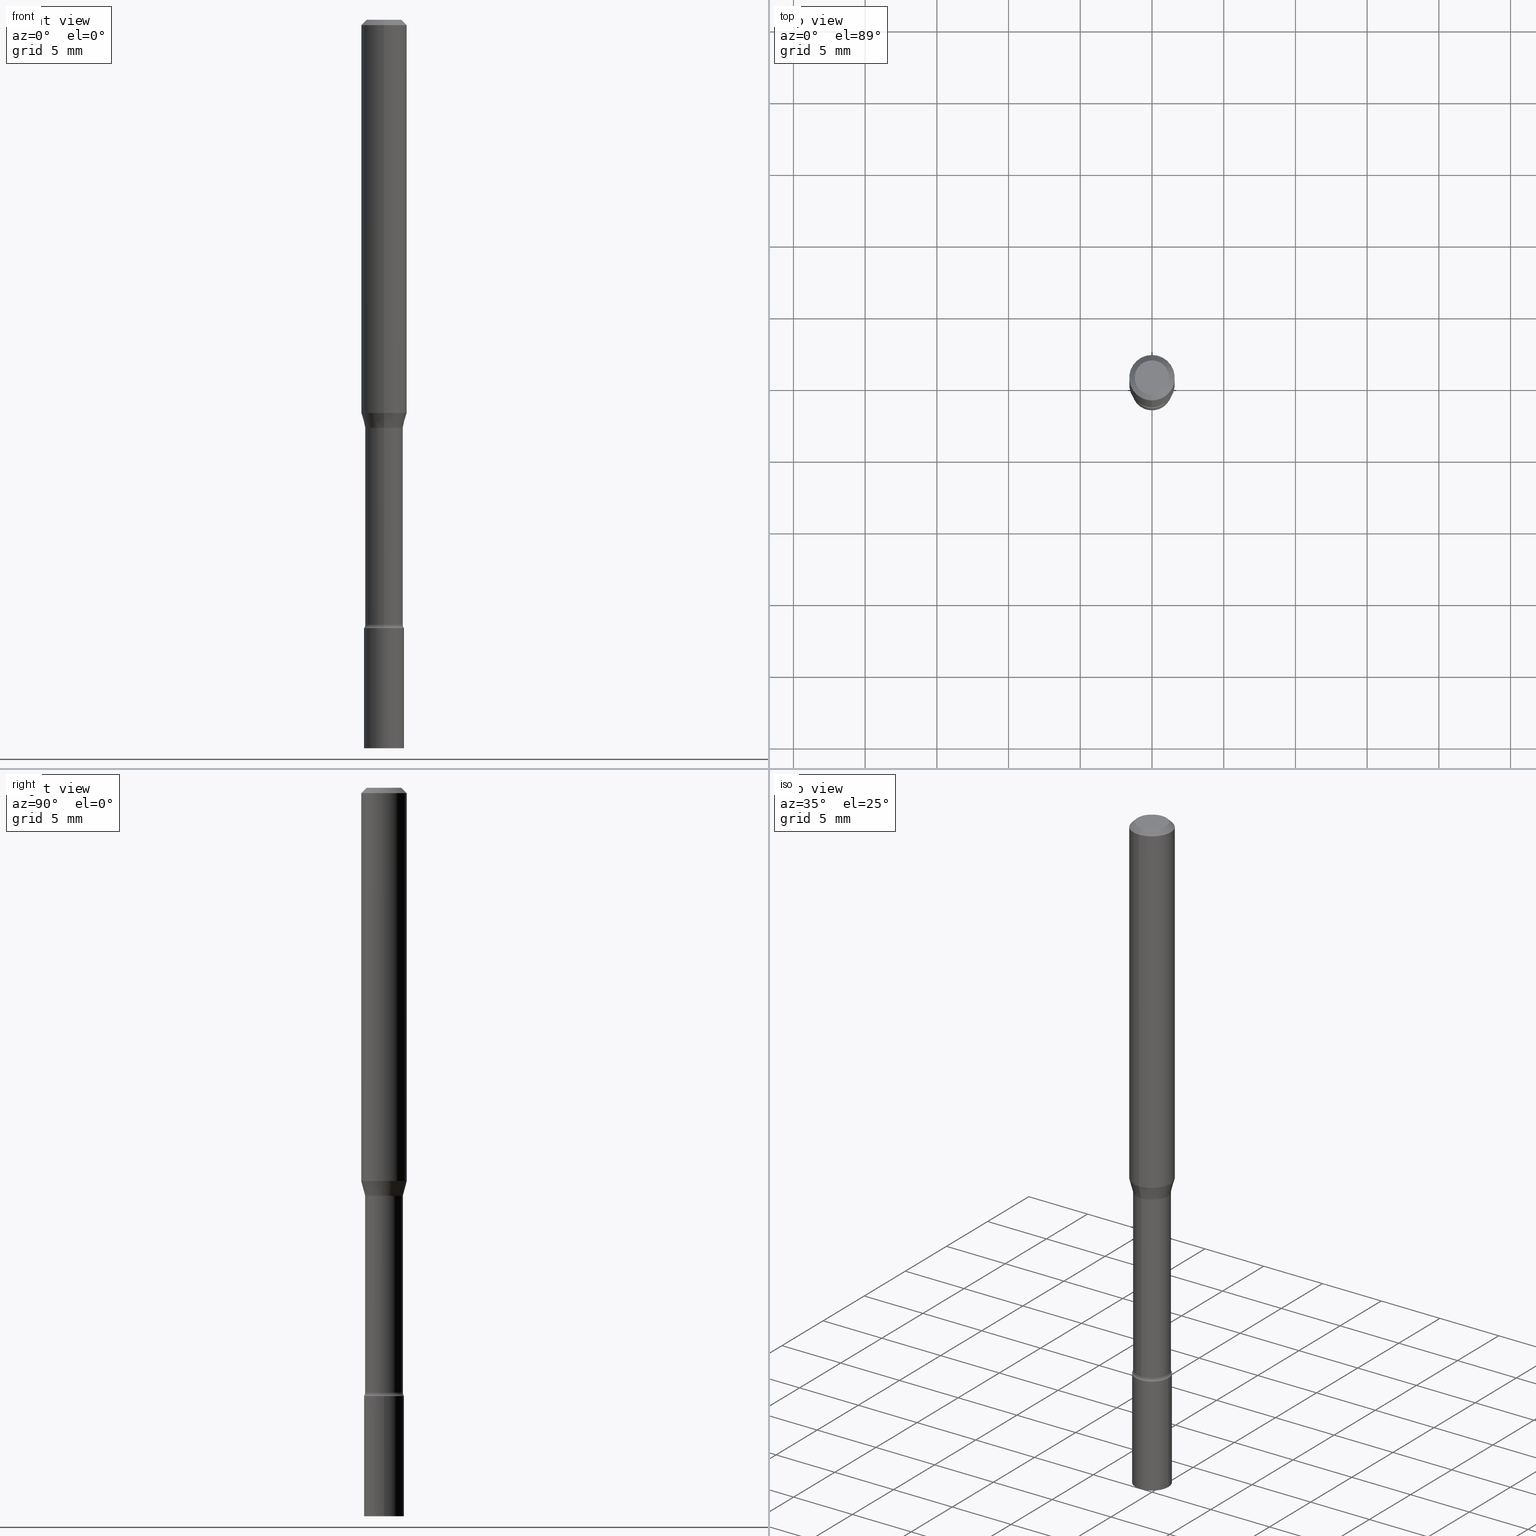
[diagram: canonical four-view strip — front | top / right | iso, engineering-drawing reading convention]
A machine part, canonical four-view strip (front | top / right | iso — engineering-drawing reading convention). The complete STEP part file that produces these views, byte-faithful:
ISO-10303-21;
HEADER;
FILE_DESCRIPTION (( 'STEP AP203' ),
    '1' );
FILE_NAME ('03478.STEP',
    '2024-03-08T21:29:04',
    ( '' ),
    ( '' ),
    'SwSTEP 2.0',
    'SolidWorks 2023',
    '' );
FILE_SCHEMA (( 'CONFIG_CONTROL_DESIGN' ));
ENDSEC;

DATA;
#1 = ORIENTED_EDGE ( 'NONE', *, *, #211, .T. ) ;
#2 = PERSON_AND_ORGANIZATION ( #9, #476 ) ;
#3 = DIRECTION ( 'NONE',  ( -6.982962677686265922E-15, -1.000000000000000000, 2.616155696869698441E-15 ) ) ;
#4 = TOROIDAL_SURFACE ( 'NONE', #429, 0.06670000000000006479, 0.01500000000000006710 ) ;
#5 = DIRECTION ( 'NONE',  ( -2.445425162328998423E-29, 3.491543839329189399E-15, 1.000000000000000000 ) ) ;
#6 = ORIENTED_EDGE ( 'NONE', *, *, #30, .T. ) ;
#7 = CIRCLE ( 'NONE', #132, 0.05170000000000000984 ) ;
#8 = EDGE_CURVE ( 'NONE', #367, #158, #295, .T. ) ;
#9 = PERSON ( 'UNSPECIFIED', 'UNSPECIFIED', 'UNSPECIFIED', ('UNSPECIFIED'), ('UNSPECIFIED'), ('UNSPECIFIED') ) ;
#10 = LINE ( 'NONE', #485, #114 ) ;
#11 = ADVANCED_FACE ( 'NONE', ( #472 ), #403, .T. ) ;
#12 = CARTESIAN_POINT ( 'NONE',  ( -4.364351673553912750E-16, -0.06250000000000005551, -0.01499999999999981209 ) ) ;
#13 = DIRECTION ( 'NONE',  ( 6.982962677686265922E-15, 1.000000000000000000, -3.491543839329189794E-15 ) ) ;
#14 = CARTESIAN_POINT ( 'NONE',  ( -4.657636106016338808E-16, -0.06670000000000586571, -1.660613307291702423 ) ) ;
#15 = LOCAL_TIME ( 16, 29, 4.000000000000000000, #90 ) ;
#16 = CARTESIAN_POINT ( 'NONE',  ( 3.840629472727855124E-16, 0.05499999999999417161, -1.670000000000000151 ) ) ;
#17 = FACE_OUTER_BOUND ( 'NONE', #49, .T. ) ;
#18 = AXIS2_PLACEMENT_3D ( 'NONE', #150, #276, #13 ) ;
#19 =( NAMED_UNIT ( * ) SI_UNIT ( $, .STERADIAN. ) SOLID_ANGLE_UNIT ( ) );
#20 = CARTESIAN_POINT ( 'NONE',  ( 3.668137743493505096E-31, -5.237315758993794502E-17, -0.01500000000000003067 ) ) ;
#21 = DIRECTION ( 'NONE',  ( -6.982962677686265133E-15, -1.000000000000000000, 3.491543839329189005E-15 ) ) ;
#22 = VECTOR ( 'NONE', #285, 39.37007874015748143 ) ;
#23 = CARTESIAN_POINT ( 'NONE',  ( 4.083932906329177803E-29, -5.830773835868053056E-15, -1.669999999999999929 ) ) ;
#24 = DIRECTION ( 'NONE',  ( 1.000000000000000000, -7.105427357601001070E-15, 4.926316273952284345E-29 ) ) ;
#25 =( NAMED_UNIT ( * ) PLANE_ANGLE_UNIT ( ) SI_UNIT ( $, .RADIAN. ) );
#26 = CARTESIAN_POINT ( 'NONE',  ( 2.743754344068947711E-29, -3.917354033082399546E-15, -1.121974787463810852 ) ) ;
#27 = DIRECTION ( 'NONE',  ( -6.982962677686265922E-15, -1.000000000000000000, 3.483106191921935554E-15 ) ) ;
#28 = ORIENTED_EDGE ( 'NONE', *, *, #455, .T. ) ;
#29 = DIRECTION ( 'NONE',  ( 2.445425162328998423E-29, -3.491543839329189399E-15, -1.000000000000000000 ) ) ;
#30 = EDGE_CURVE ( 'NONE', #473, #125, #7, .T. ) ;
#31 = EDGE_CURVE ( 'NONE', #158, #466, #162, .T. ) ;
#32 = ORIENTED_EDGE ( 'NONE', *, *, #505, .T. ) ;
#33 = CARTESIAN_POINT ( 'NONE',  ( 0.000000000000000000, 0.000000000000000000, 0.000000000000000000 ) ) ;
#34 = ORIENTED_EDGE ( 'NONE', *, *, #232, .T. ) ;
#35 = APPROVAL_ROLE ( '' ) ;
#36 = AXIS2_PLACEMENT_3D ( 'NONE', #151, #311, #155 ) ;
#37 = DIRECTION ( 'NONE',  ( -2.445425162328998423E-29, 3.491543839329189399E-15, 1.000000000000000000 ) ) ;
#38 = COORDINATED_UNIVERSAL_TIME_OFFSET ( 5, 0, .BEHIND. ) ;
#39 = ADVANCED_FACE ( 'NONE', ( #440 ), #502, .F. ) ;
#40 = AXIS2_PLACEMENT_3D ( 'NONE', #57, #352, #459 ) ;
#41 = ORIENTED_EDGE ( 'NONE', *, *, #455, .F. ) ;
#42 = ORIENTED_EDGE ( 'NONE', *, *, #50, .F. ) ;
#43 = DIRECTION ( 'NONE',  ( 7.105427357600997914E-15, 1.000000000000000000, 0.000000000000000000 ) ) ;
#44 = CALENDAR_DATE ( 2024, 8, 3 ) ;
#45 = AXIS2_PLACEMENT_3D ( 'NONE', #58, #395, #233 ) ;
#46 = CARTESIAN_POINT ( 'NONE',  ( 4.060978042117791300E-29, -5.798000373443578100E-15, -1.660613307291702645 ) ) ;
#47 = CARTESIAN_POINT ( 'NONE',  ( 2.734211537681978433E-29, -3.903868986415513327E-15, -1.118092501787272930 ) ) ;
#48 = AXIS2_PLACEMENT_3D ( 'NONE', #193, #24, #492 ) ;
#49 = EDGE_LOOP ( 'NONE', ( #1, #28 ) ) ;
#50 = EDGE_CURVE ( 'NONE', #363, #401, #450, .T. ) ;
#51 = AXIS2_PLACEMENT_3D ( 'NONE', #47, #338, #3 ) ;
#52 = CARTESIAN_POINT ( 'NONE',  ( 0.05500000000000000028, -6.214836783140797252E-15, -1.669999999999999929 ) ) ;
#53 = LOCAL_TIME ( 16, 29, 4.000000000000000000, #509 ) ;
#54 = DIRECTION ( 'NONE',  ( -2.445468806185136597E-29, 3.491481338843145583E-15, 1.000000000000000000 ) ) ;
#55 = DIRECTION ( 'NONE',  ( -1.000000000000000000, 6.982962677686265922E-15, -4.883557194083112340E-29 ) ) ;
#56 = DIRECTION ( 'NONE',  ( 1.000000000000000000, -6.982962677686262766E-15, 0.000000000000000000 ) ) ;
#57 = CARTESIAN_POINT ( 'NONE',  ( 2.734211537681978433E-29, -3.903868986415513327E-15, -1.118092501787272930 ) ) ;
#58 = CARTESIAN_POINT ( 'NONE',  ( 0.000000000000000000, 0.000000000000000000, 0.000000000000000000 ) ) ;
#59 = DIRECTION ( 'NONE',  ( 1.000000000000000000, -6.982962677686262766E-15, 0.000000000000000000 ) ) ;
#60 = DIRECTION ( 'NONE',  ( -6.982962677686266711E-15, -1.000000000000000000, 4.966996352116842287E-15 ) ) ;
#61 = LOCAL_TIME ( 16, 29, 4.000000000000000000, #334 ) ;
#62 = PLANE ( 'NONE',  #18 ) ;
#63 = CC_DESIGN_PERSON_AND_ORGANIZATION_ASSIGNMENT ( #323, #405, ( #319 ) ) ;
#64 = CARTESIAN_POINT ( 'NONE',  ( 0.05500000000000000028, -3.840629472727446888E-16, 2.681897226687764826E-30 ) ) ;
#65 = PLANE ( 'NONE',  #273 ) ;
#66 = DIRECTION ( 'NONE',  ( -2.445425162328998423E-29, 3.491543839329189399E-15, 1.000000000000000000 ) ) ;
#67 = ORIENTED_EDGE ( 'NONE', *, *, #152, .F. ) ;
#68 = DIRECTION ( 'NONE',  ( -2.445425162328998423E-29, 3.491543839329189399E-15, 1.000000000000000000 ) ) ;
#69 = AXIS2_PLACEMENT_3D ( 'NONE', #14, #299, #98 ) ;
#70 = CARTESIAN_POINT ( 'NONE',  ( -3.610191704363799542E-16, -0.05170000000000000984, 1.805128164933191265E-16 ) ) ;
#71 = DIRECTION ( 'NONE',  ( -1.000000000000000000, 6.982962677686265922E-15, -4.876176775795935793E-29 ) ) ;
#72 = EDGE_CURVE ( 'NONE', #112, #89, #438, .T. ) ;
#73 = EDGE_LOOP ( 'NONE', ( #298, #288, #156, #261 ) ) ;
#74 = CC_DESIGN_PERSON_AND_ORGANIZATION_ASSIGNMENT ( #437, #256, ( #319 ) ) ;
#75 = CARTESIAN_POINT ( 'NONE',  ( 7.069954541194189329E-46, -1.009438219697314145E-31, -2.891094215478193319E-17 ) ) ;
#76 = DIRECTION ( 'NONE',  ( -2.445468806185136597E-29, 3.491481338843145583E-15, 1.000000000000000000 ) ) ;
#77 = ORIENTED_EDGE ( 'NONE', *, *, #147, .F. ) ;
#78 = CIRCLE ( 'NONE', #307, 0.06250000000000000000 ) ;
#79 = PERSON_AND_ORGANIZATION_ROLE ( 'classification_officer' ) ;
#80 = ORIENTED_EDGE ( 'NONE', *, *, #110, .T. ) ;
#81 = SHAPE_DEFINITION_REPRESENTATION ( #365, #184 ) ;
#82 = DIRECTION ( 'NONE',  ( 1.839019923739598738E-15, 0.2588190451025247363, 0.9659258262890673130 ) ) ;
#83 = ADVANCED_FACE ( 'NONE', ( #180 ), #224, .T. ) ;
#84 = ORIENTED_EDGE ( 'NONE', *, *, #317, .T. ) ;
#85 = CARTESIAN_POINT ( 'NONE',  ( 4.083860021089427178E-29, -5.830878211679746103E-15, -1.669999999999999929 ) ) ;
#86 = DIRECTION ( 'NONE',  ( -6.982962677686264344E-15, -1.000000000000000000, 3.491543839329189399E-15 ) ) ;
#87 = DIRECTION ( 'NONE',  ( -2.445425162328998423E-29, 3.491543839329189399E-15, 1.000000000000000000 ) ) ;
#88 = ORIENTED_EDGE ( 'NONE', *, *, #146, .T. ) ;
#89 = VERTEX_POINT ( 'NONE', #493 ) ;
#90 = COORDINATED_UNIVERSAL_TIME_OFFSET ( 5, 0, .BEHIND. ) ;
#91 = AXIS2_PLACEMENT_3D ( 'NONE', #353, #148, #464 ) ;
#92 = DIRECTION ( 'NONE',  ( -6.982962677686264344E-15, -1.000000000000000000, 5.284038672464724914E-15 ) ) ;
#93 = SECURITY_CLASSIFICATION_LEVEL ( 'unclassified' ) ;
#94 = ADVANCED_FACE ( 'NONE', ( #306 ), #360, .F. ) ;
#95 = FACE_OUTER_BOUND ( 'NONE', #447, .T. ) ;
#96 = ADVANCED_FACE ( 'NONE', ( #387 ), #279, .F. ) ;
#97 = AXIS2_PLACEMENT_3D ( 'NONE', #408, #212, #218 ) ;
#98 = DIRECTION ( 'NONE',  ( -6.982962677686263555E-15, -1.000000000000000000, 0.000000000000000000 ) ) ;
#99 = VECTOR ( 'NONE', #343, 39.37007874015748143 ) ;
#100 = CARTESIAN_POINT ( 'NONE',  ( 3.668137743493505096E-31, -5.237315758993794502E-17, -0.01500000000000003067 ) ) ;
#101 = CYLINDRICAL_SURFACE ( 'NONE', #506, 0.05500000000000000028 ) ;
#102 = EDGE_CURVE ( 'NONE', #124, #399, #424, .T. ) ;
#103 = FACE_OUTER_BOUND ( 'NONE', #322, .T. ) ;
#104 = ADVANCED_FACE ( 'NONE', ( #108 ), #197, .T. ) ;
#105 = CIRCLE ( 'NONE', #344, 0.05170000000000000984 ) ;
#106 = DIRECTION ( 'NONE',  ( -6.982962677686265922E-15, -1.000000000000000000, 2.616155696869698441E-15 ) ) ;
#107 = CARTESIAN_POINT ( 'NONE',  ( 4.075357388645938693E-16, 0.05221111260566008161, -1.118092501787273152 ) ) ;
#108 = FACE_OUTER_BOUND ( 'NONE', #217, .T. ) ;
#109 = CYLINDRICAL_SURFACE ( 'NONE', #340, 0.05170000000000000984 ) ;
#110 = EDGE_CURVE ( 'NONE', #111, #253, #314, .T. ) ;
#111 = VERTEX_POINT ( 'NONE', #520 ) ;
#112 = VERTEX_POINT ( 'NONE', #243 ) ;
#113 = PRODUCT_RELATED_PRODUCT_CATEGORY ( 'detail', '', ( #391 ) ) ;
#114 = VECTOR ( 'NONE', #339, 39.37007874015748143 ) ;
#115 = DIRECTION ( 'NONE',  ( -6.982962677686264344E-15, -1.000000000000000000, 2.642019336232362457E-15 ) ) ;
#116 = VERTEX_POINT ( 'NONE', #480 ) ;
#117 = APPROVAL_STATUS ( 'not_yet_approved' ) ;
#118 = CARTESIAN_POINT ( 'NONE',  ( -0.05500000000000000028, 3.907985046680551042E-16, -2.705414299640198362E-30 ) ) ;
#119 = ORIENTED_EDGE ( 'NONE', *, *, #249, .T. ) ;
#120 = PERSON_AND_ORGANIZATION ( #9, #476 ) ;
#121 = DIRECTION ( 'NONE',  ( -1.807323732225328562E-15, -0.2588190451025179639, 0.9659258262890690894 ) ) ;
#122 = LINE ( 'NONE', #444, #183 ) ;
#123 = CARTESIAN_POINT ( 'NONE',  ( 4.060905566549507084E-29, -5.798104162582414395E-15, -1.660613307291702645 ) ) ;
#124 = VERTEX_POINT ( 'NONE', #435 ) ;
#125 = VERTEX_POINT ( 'NONE', #291 ) ;
#126 = ORIENTED_EDGE ( 'NONE', *, *, #317, .F. ) ;
#127 = DATE_AND_TIME ( #326, #221 ) ;
#128 = DIRECTION ( 'NONE',  ( -2.445425162328998423E-29, 3.491543839329189399E-15, 1.000000000000000000 ) ) ;
#129 = CARTESIAN_POINT ( 'NONE',  ( 3.840629472727935489E-16, 0.05499999999999301975, -2.000000000000000444 ) ) ;
#130 = VECTOR ( 'NONE', #378, 39.37007874015748143 ) ;
#131 = MECHANICAL_CONTEXT ( 'NONE', #210, 'mechanical' ) ;
#132 = AXIS2_PLACEMENT_3D ( 'NONE', #123, #5, #92 ) ;
#133 = EDGE_CURVE ( 'NONE', #216, #401, #176, .T. ) ;
#134 = CARTESIAN_POINT ( 'NONE',  ( 4.890937612370273194E-29, -6.982962677686291165E-15, -2.000000000000000000 ) ) ;
#135 = ADVANCED_FACE ( 'NONE', ( #409 ), #515, .T. ) ;
#136 = CIRCLE ( 'NONE', #500, 0.06250000000000000000 ) ;
#137 = CARTESIAN_POINT ( 'NONE',  ( -0.05500000000000000028, -6.016069752109117450E-15, -1.669999999999999929 ) ) ;
#138 = EDGE_CURVE ( 'NONE', #399, #124, #384, .T. ) ;
#139 = CARTESIAN_POINT ( 'NONE',  ( -4.364351673553652919E-16, -0.06250000000000377476, -1.079693851278255901 ) ) ;
#140 = TOROIDAL_SURFACE ( 'NONE', #36, 0.06669999999999999540, 0.01499999999999998557 ) ;
#141 = CARTESIAN_POINT ( 'NONE',  ( 4.083932906329177803E-29, -5.830773835868053056E-15, -1.669999999999999929 ) ) ;
#142 = AXIS2_PLACEMENT_3D ( 'NONE', #389, #354, #498 ) ;
#143 = APPROVAL ( #453, 'UNSPECIFIED' ) ;
#144 = DIRECTION ( 'NONE',  ( -2.445425162328998423E-29, 3.491543839329189399E-15, 1.000000000000000000 ) ) ;
#145 = AXIS2_PLACEMENT_3D ( 'NONE', #75, #230, #423 ) ;
#146 = EDGE_CURVE ( 'NONE', #380, #116, #78, .T. ) ;
#147 = EDGE_CURVE ( 'NONE', #216, #111, #388, .T. ) ;
#148 = DIRECTION ( 'NONE',  ( -2.445425162328998423E-29, 3.491543839329189399E-15, 1.000000000000000000 ) ) ;
#149 = AXIS2_PLACEMENT_3D ( 'NONE', #172, #29, #452 ) ;
#150 = CARTESIAN_POINT ( 'NONE',  ( 3.316907271900976096E-16, 0.04749999999999999362, -1.803038034455274700E-16 ) ) ;
#151 = CARTESIAN_POINT ( 'NONE',  ( 2.743754344068947711E-29, -3.917354033082399546E-15, -1.121974787463810852 ) ) ;
#152 = EDGE_CURVE ( 'NONE', #368, #363, #122, .T. ) ;
#153 = CONICAL_SURFACE ( 'NONE', #400, 0.05221111260566398821, 0.2617993877991500740 ) ;
#154 = APPROVAL ( #251, 'UNSPECIFIED' ) ;
#155 = DIRECTION ( 'NONE',  ( -6.982962677686265133E-15, -1.000000000000000000, 3.491543839329189005E-15 ) ) ;
#156 = ORIENTED_EDGE ( 'NONE', *, *, #72, .T. ) ;
#157 = LENGTH_MEASURE_WITH_UNIT ( LENGTH_MEASURE( 0.02539999999999999897 ), #277 );
#158 = VERTEX_POINT ( 'NONE', #385 ) ;
#159 = CARTESIAN_POINT ( 'NONE',  ( 4.739320047520278121E-16, 0.06669999999999427776, -1.660613307291702867 ) ) ;
#160 = CALENDAR_DATE ( 2024, 8, 3 ) ;
#161 = CIRCLE ( 'NONE', #406, 0.05170000000000000984 ) ;
#162 = LINE ( 'NONE', #118, #22 ) ;
#163 = APPROVAL_DATE_TIME ( #127, #154 ) ;
#164 = CONICAL_SURFACE ( 'NONE', #40, 0.05221111260566398821, 0.2617993877991500740 ) ;
#165 = DIRECTION ( 'NONE',  ( -2.445425162328998423E-29, 3.491543839329189399E-15, 1.000000000000000000 ) ) ;
#166 = DIRECTION ( 'NONE',  ( -6.982962677686266711E-15, -1.000000000000000000, 0.000000000000000000 ) ) ;
#167 = ORIENTED_EDGE ( 'NONE', *, *, #324, .T. ) ;
#168 = DATE_AND_TIME ( #160, #61 ) ;
#169 = CARTESIAN_POINT ( 'NONE',  ( 4.440892098500625669E-16, 0.06250000000000000000, -2.182214899580743374E-16 ) ) ;
#170 = ORIENTED_EDGE ( 'NONE', *, *, #407, .F. ) ;
#171 = ORIENTED_EDGE ( 'NONE', *, *, #138, .F. ) ;
#172 = CARTESIAN_POINT ( 'NONE',  ( 3.668137743493505096E-31, -5.237315758993794502E-17, -0.01500000000000003067 ) ) ;
#173 = PERSON_AND_ORGANIZATION ( #9, #476 ) ;
#174 = APPROVAL_PERSON_ORGANIZATION ( #120, #154, #35 ) ;
#175 = DIRECTION ( 'NONE',  ( -6.982962677686265133E-15, -1.000000000000000000, 3.491543839329189399E-15 ) ) ;
#176 = LINE ( 'NONE', #332, #204 ) ;
#177 = ADVANCED_FACE ( 'NONE', ( #310 ), #62, .F. ) ;
#178 = ORIENTED_EDGE ( 'NONE', *, *, #449, .F. ) ;
#179 = DATE_AND_TIME ( #44, #15 ) ;
#180 = FACE_OUTER_BOUND ( 'NONE', #260, .T. ) ;
#181 = CARTESIAN_POINT ( 'NONE',  ( -4.364351673553916201E-16, -0.06250000000000000000, 2.182214899580743374E-16 ) ) ;
#182 = ORIENTED_EDGE ( 'NONE', *, *, #489, .F. ) ;
#183 = VECTOR ( 'NONE', #82, 39.37007874015748854 ) ;
#184 = ADVANCED_BREP_SHAPE_REPRESENTATION ( '03478', ( #312, #321, #267 ), #376 ) ;
#185 = LINE ( 'NONE', #181, #130 ) ;
#186 = LOCAL_TIME ( 16, 29, 4.000000000000000000, #38 ) ;
#187 = ADVANCED_FACE ( 'NONE', ( #17 ), #65, .T. ) ;
#188 = CIRCLE ( 'NONE', #335, 0.05500000000000000028 ) ;
#189 = APPLICATION_CONTEXT ( 'configuration controlled 3d designs of mechanical parts and assemblies' ) ;
#190 = DIRECTION ( 'NONE',  ( -2.445425162328998423E-29, 3.491543839329189399E-15, 1.000000000000000000 ) ) ;
#191 = CARTESIAN_POINT ( 'NONE',  ( 0.000000000000000000, 0.000000000000000000, 0.000000000000000000 ) ) ;
#192 = VECTOR ( 'NONE', #460, 39.37007874015748143 ) ;
#193 = CARTESIAN_POINT ( 'NONE',  ( 4.739320047520142042E-16, 0.06669999999999608187, -1.121974787463811074 ) ) ;
#194 = CARTESIAN_POINT ( 'NONE',  ( 2.734211537681978433E-29, -3.903868986415513327E-15, -1.118092501787272930 ) ) ;
#195 = DIRECTION ( 'NONE',  ( -6.982962677686265922E-15, -1.000000000000000000, 3.491543839329189794E-15 ) ) ;
#196 = DIRECTION ( 'NONE',  ( 1.000000000000000000, -6.982962677686265922E-15, 4.876176775795935793E-29 ) ) ;
#197 = CYLINDRICAL_SURFACE ( 'NONE', #247, 0.05170000000000000984 ) ;
#198 = EDGE_CURVE ( 'NONE', #158, #367, #412, .T. ) ;
#199 = CIRCLE ( 'NONE', #390, 0.06250000000000000000 ) ;
#200 = AXIS2_PLACEMENT_3D ( 'NONE', #300, #231, #56 ) ;
#201 = ADVANCED_FACE ( 'NONE', ( #491 ), #109, .T. ) ;
#202 = ORIENTED_EDGE ( 'NONE', *, *, #489, .T. ) ;
#203 = VECTOR ( 'NONE', #446, 39.37007874015748143 ) ;
#204 = VECTOR ( 'NONE', #121, 39.37007874015748854 ) ;
#205 = EDGE_LOOP ( 'NONE', ( #316, #213 ) ) ;
#206 = DATE_AND_TIME ( #418, #53 ) ;
#207 = ORIENTED_EDGE ( 'NONE', *, *, #133, .F. ) ;
#208 = EDGE_LOOP ( 'NONE', ( #410, #379 ) ) ;
#209 = COORDINATED_UNIVERSAL_TIME_OFFSET ( 5, 0, .BEHIND. ) ;
#210 = APPLICATION_CONTEXT ( 'configuration controlled 3d designs of mechanical parts and assemblies' ) ;
#211 = EDGE_CURVE ( 'NONE', #250, #466, #188, .T. ) ;
#212 = DIRECTION ( 'NONE',  ( -2.445425162328998423E-29, 3.491543839329189399E-15, 1.000000000000000000 ) ) ;
#213 = ORIENTED_EDGE ( 'NONE', *, *, #72, .F. ) ;
#214 = PERSON_AND_ORGANIZATION_ROLE ( 'design_owner' ) ;
#215 = AXIS2_PLACEMENT_3D ( 'NONE', #33, #76, #517 ) ;
#216 = VERTEX_POINT ( 'NONE', #236 ) ;
#217 = EDGE_LOOP ( 'NONE', ( #448, #84, #286, #170 ) ) ;
#218 = DIRECTION ( 'NONE',  ( -6.982962677686265922E-15, -1.000000000000000000, 4.370956789862821150E-15 ) ) ;
#219 = APPROVAL_DATE_TIME ( #179, #246 ) ;
#220 = DIRECTION ( 'NONE',  ( -2.445425162328998423E-29, 3.491543839329189399E-15, 1.000000000000000000 ) ) ;
#221 = LOCAL_TIME ( 16, 29, 4.000000000000000000, #209 ) ;
#222 = DESIGN_CONTEXT ( 'detailed design', #189, 'design' ) ;
#223 = ORIENTED_EDGE ( 'NONE', *, *, #8, .T. ) ;
#224 = CYLINDRICAL_SURFACE ( 'NONE', #45, 0.06250000000000000000 ) ;
#225 = CIRCLE ( 'NONE', #469, 0.05500000000000000028 ) ;
#226 = AXIS2_PLACEMENT_3D ( 'NONE', #46, #37, #328 ) ;
#227 = DIRECTION ( 'NONE',  ( -6.982962677686266711E-15, -1.000000000000000000, 4.966996352116842287E-15 ) ) ;
#228 = CARTESIAN_POINT ( 'NONE',  ( 4.364351673553919652E-16, 0.06249999999999995143, -0.01500000000000024751 ) ) ;
#229 = ADVANCED_FACE ( 'NONE', ( #393 ), #153, .T. ) ;
#230 = DIRECTION ( 'NONE',  ( -2.445425162328998423E-29, 3.491543839329189399E-15, 1.000000000000000000 ) ) ;
#231 = DIRECTION ( 'NONE',  ( -2.445468806185136597E-29, 3.491481338843145583E-15, 1.000000000000000000 ) ) ;
#232 = EDGE_CURVE ( 'NONE', #216, #368, #245, .T. ) ;
#233 = DIRECTION ( 'NONE',  ( -6.982962677686265922E-15, -1.000000000000000000, 3.491543839329189399E-15 ) ) ;
#234 = EDGE_CURVE ( 'NONE', #401, #363, #136, .T. ) ;
#235 = CIRCLE ( 'NONE', #200, 0.05500000000000000028 ) ;
#236 = CARTESIAN_POINT ( 'NONE',  ( -3.645882506857991798E-16, -0.05221111260566788786, -1.118092501787272930 ) ) ;
#237 = DIRECTION ( 'NONE',  ( 1.000000000000000000, -6.982962677686266711E-15, 4.876176775795935793E-29 ) ) ;
#238 = ADVANCED_FACE ( 'NONE', ( #95 ), #4, .F. ) ;
#239 = DIRECTION ( 'NONE',  ( -6.982962677686264344E-15, -1.000000000000000000, 2.642019336232362457E-15 ) ) ;
#240 = CC_DESIGN_APPROVAL ( #154, ( #254 ) ) ;
#241 = EDGE_LOOP ( 'NONE', ( #255, #431, #248, #80 ) ) ;
#242 = CARTESIAN_POINT ( 'NONE',  ( 0.000000000000000000, 0.000000000000000000, 0.000000000000000000 ) ) ;
#243 = CARTESIAN_POINT ( 'NONE',  ( 3.907985046680961743E-16, 0.05499999999999421324, -1.670000000000000151 ) ) ;
#244 = ORIENTED_EDGE ( 'NONE', *, *, #430, .T. ) ;
#245 = CIRCLE ( 'NONE', #51, 0.05221111260566398821 ) ;
#246 = APPROVAL ( #117, 'UNSPECIFIED' ) ;
#247 = AXIS2_PLACEMENT_3D ( 'NONE', #355, #374, #86 ) ;
#248 = ORIENTED_EDGE ( 'NONE', *, *, #147, .T. ) ;
#249 = EDGE_CURVE ( 'NONE', #401, #380, #185, .T. ) ;
#250 = VERTEX_POINT ( 'NONE', #52 ) ;
#251 = APPROVAL_STATUS ( 'not_yet_approved' ) ;
#252 = ORIENTED_EDGE ( 'NONE', *, *, #430, .F. ) ;
#253 = VERTEX_POINT ( 'NONE', #290 ) ;
#254 = SECURITY_CLASSIFICATION ( '', '', #93 ) ;
#255 = ORIENTED_EDGE ( 'NONE', *, *, #415, .F. ) ;
#256 = PERSON_AND_ORGANIZATION_ROLE ( 'design_supplier' ) ;
#257 = FACE_OUTER_BOUND ( 'NONE', #375, .T. ) ;
#258 = EDGE_CURVE ( 'NONE', #363, #116, #381, .T. ) ;
#259 = AXIS2_PLACEMENT_3D ( 'NONE', #16, #347, #195 ) ;
#260 = EDGE_LOOP ( 'NONE', ( #329, #416, #119, #252 ) ) ;
#261 = ORIENTED_EDGE ( 'NONE', *, *, #497, .F. ) ;
#262 = CARTESIAN_POINT ( 'NONE',  ( 0.000000000000000000, 0.000000000000000000, 0.000000000000000000 ) ) ;
#263 = CYLINDRICAL_SURFACE ( 'NONE', #356, 0.06250000000000000000 ) ;
#264 = DIRECTION ( 'NONE',  ( -6.982962677686265922E-15, -1.000000000000000000, 4.370956789862821150E-15 ) ) ;
#265 = ORIENTED_EDGE ( 'NONE', *, *, #449, .T. ) ;
#266 = PERSON_AND_ORGANIZATION ( #9, #476 ) ;
#267 = AXIS2_PLACEMENT_3D ( 'NONE', #262, #369, #482 ) ;
#268 = LINE ( 'NONE', #64, #192 ) ;
#269 = CC_DESIGN_APPROVAL ( #246, ( #382 ) ) ;
#270 = DIRECTION ( 'NONE',  ( -6.982962677686265922E-15, -1.000000000000000000, 3.483106191921935554E-15 ) ) ;
#271 = LINE ( 'NONE', #228, #99 ) ;
#272 = LINE ( 'NONE', #70, #467 ) ;
#273 = AXIS2_PLACEMENT_3D ( 'NONE', #23, #274, #196 ) ;
#274 = DIRECTION ( 'NONE',  ( -2.438088387897960049E-29, 3.491481338843145188E-15, 1.000000000000000000 ) ) ;
#275 = AXIS2_PLACEMENT_3D ( 'NONE', #511, #220, #227 ) ;
#276 = DIRECTION ( 'NONE',  ( 2.445425162328997862E-29, -3.491543839329189794E-15, -1.000000000000000000 ) ) ;
#277 =( LENGTH_UNIT ( ) NAMED_UNIT ( * ) SI_UNIT ( $, .METRE. ) );
#278 = CIRCLE ( 'NONE', #461, 0.05221111260566398821 ) ;
#279 = PLANE ( 'NONE',  #259 ) ;
#280 = ORIENTED_EDGE ( 'NONE', *, *, #439, .F. ) ;
#281 = ORIENTED_EDGE ( 'NONE', *, *, #234, .T. ) ;
#282 = ORIENTED_EDGE ( 'NONE', *, *, #211, .F. ) ;
#283 = PERSON_AND_ORGANIZATION_ROLE ( 'creator' ) ;
#284 = CC_DESIGN_DATE_AND_TIME_ASSIGNMENT ( #206, #478, ( #254 ) ) ;
#285 = DIRECTION ( 'NONE',  ( -2.445468806185136877E-29, 3.491481338843145188E-15, 1.000000000000000000 ) ) ;
#286 = ORIENTED_EDGE ( 'NONE', *, *, #110, .F. ) ;
#287 = PERSON_AND_ORGANIZATION ( #9, #476 ) ;
#288 = ORIENTED_EDGE ( 'NONE', *, *, #439, .T. ) ;
#289 = DIRECTION ( 'NONE',  ( 1.000000000000000000, -7.105427357601001070E-15, 4.926316273952284345E-29 ) ) ;
#290 = CARTESIAN_POINT ( 'NONE',  ( 3.673505943880124923E-16, 0.05169999999999608936, -1.121974787463811074 ) ) ;
#291 = CARTESIAN_POINT ( 'NONE',  ( -3.610191704363393772E-16, -0.05170000000000580381, -1.660613307291702423 ) ) ;
#292 = EDGE_LOOP ( 'NONE', ( #223, #296, #282, #325 ) ) ;
#293 = EDGE_LOOP ( 'NONE', ( #442, #436 ) ) ;
#294 = DATE_TIME_ROLE ( 'creation_date' ) ;
#295 = CIRCLE ( 'NONE', #402, 0.05500000000000000028 ) ;
#296 = ORIENTED_EDGE ( 'NONE', *, *, #31, .T. ) ;
#297 = PERSON_AND_ORGANIZATION ( #9, #476 ) ;
#298 = ORIENTED_EDGE ( 'NONE', *, *, #30, .F. ) ;
#299 = DIRECTION ( 'NONE',  ( -1.000000000000000000, 6.982962677686265922E-15, -4.883557194083112340E-29 ) ) ;
#300 = CARTESIAN_POINT ( 'NONE',  ( 4.083932906329177803E-29, -5.830773835868053056E-15, -1.669999999999999929 ) ) ;
#301 = CONICAL_SURFACE ( 'NONE', #427, 0.06250000000000000000, 0.7853981633974483900 ) ;
#302 = CARTESIAN_POINT ( 'NONE',  ( 4.440892098500888458E-16, 0.06249999999999621830, -1.079693851278256345 ) ) ;
#303 = CLOSED_SHELL ( 'NONE', ( #11, #187, #357, #135 ) ) ;
#304 = DIRECTION ( 'NONE',  ( -6.982962677686264344E-15, -1.000000000000000000, 3.491543839329189399E-15 ) ) ;
#305 = AXIS2_PLACEMENT_3D ( 'NONE', #510, #165, #115 ) ;
#306 = FACE_OUTER_BOUND ( 'NONE', #241, .T. ) ;
#307 = AXIS2_PLACEMENT_3D ( 'NONE', #100, #87, #270 ) ;
#308 = CARTESIAN_POINT ( 'NONE',  ( 2.743705376762733121E-29, -3.917424157051945251E-15, -1.121974787463810852 ) ) ;
#309 = DIRECTION ( 'NONE',  ( -6.982962677686265922E-15, -1.000000000000000000, 2.616155696869698441E-15 ) ) ;
#310 = FACE_OUTER_BOUND ( 'NONE', #208, .T. ) ;
#311 = DIRECTION ( 'NONE',  ( -2.445425162328998423E-29, 3.491543839329189399E-15, 1.000000000000000000 ) ) ;
#312 = MANIFOLD_SOLID_BREP ( 'Body-Move/Copy2[1]', #303 ) ;
#313 = VECTOR ( 'NONE', #331, 39.37007874015748143 ) ;
#314 = CIRCLE ( 'NONE', #305, 0.05170000000000000984 ) ;
#315 = DIRECTION ( 'NONE',  ( -2.445425162328998423E-29, 3.491543839329189399E-15, 1.000000000000000000 ) ) ;
#316 = ORIENTED_EDGE ( 'NONE', *, *, #324, .F. ) ;
#317 = EDGE_CURVE ( 'NONE', #473, #253, #327, .T. ) ;
#318 = DIRECTION ( 'NONE',  ( -2.445425162328998703E-29, 3.491543839329189794E-15, 1.000000000000000000 ) ) ;
#319 = PRODUCT_DEFINITION_FORMATION_WITH_SPECIFIED_SOURCE ( 'ANY', '', #391, .NOT_KNOWN. ) ;
#320 = ORIENTED_EDGE ( 'NONE', *, *, #425, .F. ) ;
#321 = MANIFOLD_SOLID_BREP ( 'Body-Move/Copy2[2]', #348 ) ;
#322 = EDGE_LOOP ( 'NONE', ( #171, #265, #88, #182 ) ) ;
#323 = PERSON_AND_ORGANIZATION ( #9, #476 ) ;
#324 = EDGE_CURVE ( 'NONE', #89, #112, #225, .T. ) ;
#325 = ORIENTED_EDGE ( 'NONE', *, *, #505, .F. ) ;
#326 = CALENDAR_DATE ( 2024, 8, 3 ) ;
#327 = LINE ( 'NONE', #474, #203 ) ;
#328 = DIRECTION ( 'NONE',  ( -6.982962677686265133E-15, -1.000000000000000000, 3.491543839329189399E-15 ) ) ;
#329 = ORIENTED_EDGE ( 'NONE', *, *, #258, .F. ) ;
#330 = CONICAL_SURFACE ( 'NONE', #149, 0.06250000000000000000, 0.7853981633974483900 ) ;
#331 = DIRECTION ( 'NONE',  ( -2.445425162328998703E-29, 3.491543839329189794E-15, 1.000000000000000000 ) ) ;
#332 = CARTESIAN_POINT ( 'NONE',  ( -3.645882506857991798E-16, -0.05221111260566788786, -1.118092501787272930 ) ) ;
#333 = ORIENTED_EDGE ( 'NONE', *, *, #425, .T. ) ;
#334 = COORDINATED_UNIVERSAL_TIME_OFFSET ( 5, 0, .BEHIND. ) ;
#335 = AXIS2_PLACEMENT_3D ( 'NONE', #141, #457, #59 ) ;
#336 = ORIENTED_EDGE ( 'NONE', *, *, #152, .T. ) ;
#337 = CC_DESIGN_DATE_AND_TIME_ASSIGNMENT ( #513, #294, ( #382 ) ) ;
#338 = DIRECTION ( 'NONE',  ( -2.445425162328998423E-29, 3.491543839329189399E-15, 1.000000000000000000 ) ) ;
#339 = DIRECTION ( 'NONE',  ( -4.851104656540964275E-15, -0.7071067811865500152, -0.7071067811865450192 ) ) ;
#340 = AXIS2_PLACEMENT_3D ( 'NONE', #191, #144, #304 ) ;
#341 = ADVANCED_FACE ( 'NONE', ( #346 ), #164, .T. ) ;
#342 = DIRECTION ( 'NONE',  ( -6.982962677686264344E-15, -1.000000000000000000, 5.284038672464724914E-15 ) ) ;
#343 = DIRECTION ( 'NONE',  ( 4.937700262164548042E-15, 0.7071067811865451302, -0.7071067811865499042 ) ) ;
#344 = AXIS2_PLACEMENT_3D ( 'NONE', #386, #190, #342 ) ;
#345 = UNCERTAINTY_MEASURE_WITH_UNIT (LENGTH_MEASURE( 1.000000000000000082E-05 ), #396, 'distance_accuracy_value', 'NONE');
#346 = FACE_OUTER_BOUND ( 'NONE', #470, .T. ) ;
#347 = DIRECTION ( 'NONE',  ( -2.445425162328997862E-29, 3.491543839329189794E-15, 1.000000000000000000 ) ) ;
#348 = CLOSED_SHELL ( 'NONE', ( #426, #104, #39, #420, #434, #229, #341, #83, #441, #177, #96, #238, #201, #94 ) ) ;
#349 = CC_DESIGN_PERSON_AND_ORGANIZATION_ASSIGNMENT ( #2, #283, ( #382 ) ) ;
#350 = DIRECTION ( 'NONE',  ( 2.445425162328998423E-29, -3.491543839329189399E-15, -1.000000000000000000 ) ) ;
#351 = EDGE_CURVE ( 'NONE', #368, #216, #278, .T. ) ;
#352 = DIRECTION ( 'NONE',  ( -2.445425162328998423E-29, 3.491543839329189399E-15, 1.000000000000000000 ) ) ;
#353 = CARTESIAN_POINT ( 'NONE',  ( 7.069954541194189329E-46, -1.009438219697314145E-31, -2.891094215478193319E-17 ) ) ;
#354 = DIRECTION ( 'NONE',  ( -2.445468806185136597E-29, 3.491481338843145583E-15, 1.000000000000000000 ) ) ;
#355 = CARTESIAN_POINT ( 'NONE',  ( 0.000000000000000000, 0.000000000000000000, 0.000000000000000000 ) ) ;
#356 = AXIS2_PLACEMENT_3D ( 'NONE', #242, #68, #504 ) ;
#357 = ADVANCED_FACE ( 'NONE', ( #422 ), #101, .T. ) ;
#358 = ORIENTED_EDGE ( 'NONE', *, *, #146, .F. ) ;
#359 = AXIS2_PLACEMENT_3D ( 'NONE', #486, #55, #166 ) ;
#360 = TOROIDAL_SURFACE ( 'NONE', #458, 0.06669999999999999540, 0.01499999999999998557 ) ;
#361 = EDGE_LOOP ( 'NONE', ( #126, #6, #508, #320 ) ) ;
#362 = APPROVAL_DATE_TIME ( #168, #143 ) ;
#363 = VERTEX_POINT ( 'NONE', #302 ) ;
#364 = ORIENTED_EDGE ( 'NONE', *, *, #249, .F. ) ;
#365 = PRODUCT_DEFINITION_SHAPE ( 'NONE', 'NONE',  #382 ) ;
#366 = APPLICATION_PROTOCOL_DEFINITION ( 'international standard', 'config_control_design', 1994, #189 ) ;
#367 = VERTEX_POINT ( 'NONE', #383 ) ;
#368 = VERTEX_POINT ( 'NONE', #107 ) ;
#369 = DIRECTION ( 'NONE',  ( 0.000000000000000000, 0.000000000000000000, 1.000000000000000000 ) ) ;
#370 = ORIENTED_EDGE ( 'NONE', *, *, #415, .T. ) ;
#371 = ORIENTED_EDGE ( 'NONE', *, *, #351, .F. ) ;
#372 = FACE_OUTER_BOUND ( 'NONE', #468, .T. ) ;
#373 = APPROVAL_ROLE ( '' ) ;
#374 = DIRECTION ( 'NONE',  ( -2.445425162328998423E-29, 3.491543839329189399E-15, 1.000000000000000000 ) ) ;
#375 = EDGE_LOOP ( 'NONE', ( #281, #477, #358, #364 ) ) ;
#376 =( GEOMETRIC_REPRESENTATION_CONTEXT ( 3 ) GLOBAL_UNCERTAINTY_ASSIGNED_CONTEXT ( ( #345 ) ) GLOBAL_UNIT_ASSIGNED_CONTEXT ( ( #396, #25, #19 ) ) REPRESENTATION_CONTEXT ( 'NONE', 'WORKASPACE' ) );
#377 = APPROVAL_ROLE ( '' ) ;
#378 = DIRECTION ( 'NONE',  ( -2.445425162328998703E-29, 3.491543839329189794E-15, 1.000000000000000000 ) ) ;
#379 = ORIENTED_EDGE ( 'NONE', *, *, #138, .T. ) ;
#380 = VERTEX_POINT ( 'NONE', #12 ) ;
#381 = LINE ( 'NONE', #169, #313 ) ;
#382 = PRODUCT_DEFINITION ( 'UNKNOWN', '', #319, #222 ) ;
#383 = CARTESIAN_POINT ( 'NONE',  ( 0.05500000000000000028, -7.367025624959035361E-15, -2.000000000000000000 ) ) ;
#384 = CIRCLE ( 'NONE', #145, 0.04749999999999999362 ) ;
#385 = CARTESIAN_POINT ( 'NONE',  ( -0.05500000000000000028, -6.016069752109117450E-15, -2.000000000000000000 ) ) ;
#386 = CARTESIAN_POINT ( 'NONE',  ( 4.060905566549507084E-29, -5.798104162582414395E-15, -1.660613307291702645 ) ) ;
#387 = FACE_OUTER_BOUND ( 'NONE', #205, .T. ) ;
#388 = CIRCLE ( 'NONE', #359, 0.01499999999999998557 ) ;
#389 = CARTESIAN_POINT ( 'NONE',  ( 4.890937612370273194E-29, -6.982962677686291165E-15, -2.000000000000000000 ) ) ;
#390 = AXIS2_PLACEMENT_3D ( 'NONE', #499, #398, #27 ) ;
#391 = PRODUCT ( '03478', '03478', '', ( #131 ) ) ;
#392 = EDGE_CURVE ( 'NONE', #125, #473, #105, .T. ) ;
#393 = FACE_OUTER_BOUND ( 'NONE', #503, .T. ) ;
#394 = FACE_OUTER_BOUND ( 'NONE', #484, .T. ) ;
#395 = DIRECTION ( 'NONE',  ( -2.445425162328998423E-29, 3.491543839329189399E-15, 1.000000000000000000 ) ) ;
#396 =( CONVERSION_BASED_UNIT ( 'INCH', #157 ) LENGTH_UNIT ( ) NAMED_UNIT ( #516 ) );
#397 = APPROVAL_PERSON_ORGANIZATION ( #173, #143, #377 ) ;
#398 = DIRECTION ( 'NONE',  ( -2.445425162328998423E-29, 3.491543839329189399E-15, 1.000000000000000000 ) ) ;
#399 = VERTEX_POINT ( 'NONE', #488 ) ;
#400 = AXIS2_PLACEMENT_3D ( 'NONE', #494, #462, #106 ) ;
#401 = VERTEX_POINT ( 'NONE', #139 ) ;
#402 = AXIS2_PLACEMENT_3D ( 'NONE', #134, #413, #451 ) ;
#403 = CYLINDRICAL_SURFACE ( 'NONE', #215, 0.05500000000000000028 ) ;
#404 = ORIENTED_EDGE ( 'NONE', *, *, #351, .T. ) ;
#405 = PERSON_AND_ORGANIZATION_ROLE ( 'creator' ) ;
#406 = AXIS2_PLACEMENT_3D ( 'NONE', #308, #66, #239 ) ;
#407 = EDGE_CURVE ( 'NONE', #125, #111, #272, .T. ) ;
#408 = CARTESIAN_POINT ( 'NONE',  ( 2.640310511527751488E-29, -3.769798414792201545E-15, -1.079693851278256123 ) ) ;
#409 = FACE_OUTER_BOUND ( 'NONE', #293, .T. ) ;
#410 = ORIENTED_EDGE ( 'NONE', *, *, #102, .T. ) ;
#411 = ORIENTED_EDGE ( 'NONE', *, *, #31, .F. ) ;
#412 = CIRCLE ( 'NONE', #142, 0.05500000000000000028 ) ;
#413 = DIRECTION ( 'NONE',  ( -2.445468806185136597E-29, 3.491481338843145583E-15, 1.000000000000000000 ) ) ;
#414 = APPLICATION_PROTOCOL_DEFINITION ( 'international standard', 'config_control_design', 1994, #210 ) ;
#415 = EDGE_CURVE ( 'NONE', #368, #253, #454, .T. ) ;
#416 = ORIENTED_EDGE ( 'NONE', *, *, #50, .T. ) ;
#417 = CIRCLE ( 'NONE', #69, 0.01500000000000007057 ) ;
#418 = CALENDAR_DATE ( 2024, 8, 3 ) ;
#419 = CARTESIAN_POINT ( 'NONE',  ( 2.640310511527751488E-29, -3.769798414792201545E-15, -1.079693851278256123 ) ) ;
#420 = ADVANCED_FACE ( 'NONE', ( #103 ), #301, .T. ) ;
#421 = APPROVAL_PERSON_ORGANIZATION ( #297, #246, #373 ) ;
#422 = FACE_OUTER_BOUND ( 'NONE', #501, .T. ) ;
#423 = DIRECTION ( 'NONE',  ( -6.982962677686266711E-15, -1.000000000000000000, 3.491543839329189399E-15 ) ) ;
#424 = CIRCLE ( 'NONE', #91, 0.04749999999999999362 ) ;
#425 = EDGE_CURVE ( 'NONE', #253, #111, #161, .T. ) ;
#426 = ADVANCED_FACE ( 'NONE', ( #394 ), #140, .F. ) ;
#427 = AXIS2_PLACEMENT_3D ( 'NONE', #20, #350, #495 ) ;
#428 = CARTESIAN_POINT ( 'NONE',  ( 0.000000000000000000, 0.000000000000000000, 0.000000000000000000 ) ) ;
#429 = AXIS2_PLACEMENT_3D ( 'NONE', #514, #519, #175 ) ;
#430 = EDGE_CURVE ( 'NONE', #116, #380, #199, .T. ) ;
#431 = ORIENTED_EDGE ( 'NONE', *, *, #232, .F. ) ;
#432 = DIRECTION ( 'NONE',  ( 2.438088387897960049E-29, -3.491481338843145188E-15, -1.000000000000000000 ) ) ;
#433 = ORIENTED_EDGE ( 'NONE', *, *, #234, .F. ) ;
#434 = ADVANCED_FACE ( 'NONE', ( #257 ), #263, .T. ) ;
#435 = CARTESIAN_POINT ( 'NONE',  ( 3.840629472727447874E-16, 0.04749999999999999362, -1.947592745229183872E-16 ) ) ;
#436 = ORIENTED_EDGE ( 'NONE', *, *, #198, .F. ) ;
#437 = PERSON_AND_ORGANIZATION ( #9, #476 ) ;
#438 = CIRCLE ( 'NONE', #275, 0.05500000000000000028 ) ;
#439 = EDGE_CURVE ( 'NONE', #473, #112, #456, .T. ) ;
#440 = FACE_OUTER_BOUND ( 'NONE', #73, .T. ) ;
#441 = ADVANCED_FACE ( 'NONE', ( #372 ), #330, .T. ) ;
#442 = ORIENTED_EDGE ( 'NONE', *, *, #8, .F. ) ;
#443 = CALENDAR_DATE ( 2024, 8, 3 ) ;
#444 = CARTESIAN_POINT ( 'NONE',  ( 3.709822678790986957E-16, 0.05221111260566008161, -1.118092501787273152 ) ) ;
#445 = CC_DESIGN_APPROVAL ( #143, ( #319 ) ) ;
#446 = DIRECTION ( 'NONE',  ( -2.445425162328998703E-29, 3.491543839329189794E-15, 1.000000000000000000 ) ) ;
#447 = EDGE_LOOP ( 'NONE', ( #280, #518, #471, #167 ) ) ;
#448 = ORIENTED_EDGE ( 'NONE', *, *, #392, .T. ) ;
#449 = EDGE_CURVE ( 'NONE', #399, #380, #10, .T. ) ;
#450 = CIRCLE ( 'NONE', #97, 0.06250000000000000000 ) ;
#451 = DIRECTION ( 'NONE',  ( 1.000000000000000000, -6.982962677686262766E-15, 0.000000000000000000 ) ) ;
#452 = DIRECTION ( 'NONE',  ( 6.982962677686265922E-15, 1.000000000000000000, -3.483106191921935554E-15 ) ) ;
#453 = APPROVAL_STATUS ( 'not_yet_approved' ) ;
#454 = CIRCLE ( 'NONE', #48, 0.01499999999999998557 ) ;
#455 = EDGE_CURVE ( 'NONE', #466, #250, #235, .T. ) ;
#456 = CIRCLE ( 'NONE', #475, 0.01500000000000007057 ) ;
#457 = DIRECTION ( 'NONE',  ( -2.445468806185136597E-29, 3.491481338843145583E-15, 1.000000000000000000 ) ) ;
#458 = AXIS2_PLACEMENT_3D ( 'NONE', #26, #315, #21 ) ;
#459 = DIRECTION ( 'NONE',  ( -6.982962677686265922E-15, -1.000000000000000000, 2.616155696869698441E-15 ) ) ;
#460 = DIRECTION ( 'NONE',  ( -2.445468806185136877E-29, 3.491481338843145188E-15, 1.000000000000000000 ) ) ;
#461 = AXIS2_PLACEMENT_3D ( 'NONE', #194, #496, #309 ) ;
#462 = DIRECTION ( 'NONE',  ( -2.445425162328998423E-29, 3.491543839329189399E-15, 1.000000000000000000 ) ) ;
#463 = CC_DESIGN_SECURITY_CLASSIFICATION ( #254, ( #319 ) ) ;
#464 = DIRECTION ( 'NONE',  ( -6.982962677686266711E-15, -1.000000000000000000, 3.491543839329189399E-15 ) ) ;
#465 = CC_DESIGN_PERSON_AND_ORGANIZATION_ASSIGNMENT ( #287, #214, ( #391 ) ) ;
#466 = VERTEX_POINT ( 'NONE', #137 ) ;
#467 = VECTOR ( 'NONE', #318, 39.37007874015748143 ) ;
#468 = EDGE_LOOP ( 'NONE', ( #178, #507, #202, #244 ) ) ;
#469 = AXIS2_PLACEMENT_3D ( 'NONE', #85, #128, #60 ) ;
#470 = EDGE_LOOP ( 'NONE', ( #67, #404, #512, #42 ) ) ;
#471 = ORIENTED_EDGE ( 'NONE', *, *, #497, .T. ) ;
#472 = FACE_OUTER_BOUND ( 'NONE', #292, .T. ) ;
#473 = VERTEX_POINT ( 'NONE', #487 ) ;
#474 = CARTESIAN_POINT ( 'NONE',  ( 3.673505943879717674E-16, 0.05170000000000000984, -1.805128164933191265E-16 ) ) ;
#475 = AXIS2_PLACEMENT_3D ( 'NONE', #159, #289, #43 ) ;
#476 = ORGANIZATION ( 'UNSPECIFIED', 'UNSPECIFIED', '' ) ;
#477 = ORIENTED_EDGE ( 'NONE', *, *, #258, .T. ) ;
#478 = DATE_TIME_ROLE ( 'classification_date' ) ;
#479 = DIRECTION ( 'NONE',  ( -2.445425162328998423E-29, 3.491543839329189399E-15, 1.000000000000000000 ) ) ;
#480 = CARTESIAN_POINT ( 'NONE',  ( 4.440892098500891416E-16, 0.06249999999999995143, -0.01500000000000024751 ) ) ;
#481 = ORIENTED_EDGE ( 'NONE', *, *, #198, .T. ) ;
#482 = DIRECTION ( 'NONE',  ( 1.000000000000000000, 0.000000000000000000, 0.000000000000000000 ) ) ;
#483 = AXIS2_PLACEMENT_3D ( 'NONE', #129, #432, #71 ) ;
#484 = EDGE_LOOP ( 'NONE', ( #371, #370, #333, #77 ) ) ;
#485 = CARTESIAN_POINT ( 'NONE',  ( -4.287811248607203282E-16, -0.06250000000000005551, -0.01499999999999981209 ) ) ;
#486 = CARTESIAN_POINT ( 'NONE',  ( -4.657636106016465025E-16, -0.06670000000000392282, -1.121974787463810630 ) ) ;
#487 = CARTESIAN_POINT ( 'NONE',  ( 3.790745495280543333E-16, 0.05169999999999420892, -1.660613307291702867 ) ) ;
#488 = CARTESIAN_POINT ( 'NONE',  ( -3.773273898774340269E-16, -0.04749999999999999362, 1.369373902133545702E-16 ) ) ;
#489 = EDGE_CURVE ( 'NONE', #124, #116, #271, .T. ) ;
#490 = CC_DESIGN_PERSON_AND_ORGANIZATION_ASSIGNMENT ( #266, #79, ( #254 ) ) ;
#491 = FACE_OUTER_BOUND ( 'NONE', #361, .T. ) ;
#492 = DIRECTION ( 'NONE',  ( 7.105427357601001859E-15, 1.000000000000000000, 0.000000000000000000 ) ) ;
#493 = CARTESIAN_POINT ( 'NONE',  ( -3.840629472727041611E-16, -0.05500000000000587752, -1.669999999999999707 ) ) ;
#494 = CARTESIAN_POINT ( 'NONE',  ( 2.734211537681978433E-29, -3.903868986415513327E-15, -1.118092501787272930 ) ) ;
#495 = DIRECTION ( 'NONE',  ( 6.982962677686265922E-15, 1.000000000000000000, -3.483106191921935554E-15 ) ) ;
#496 = DIRECTION ( 'NONE',  ( -2.445425162328998423E-29, 3.491543839329189399E-15, 1.000000000000000000 ) ) ;
#497 = EDGE_CURVE ( 'NONE', #125, #89, #417, .T. ) ;
#498 = DIRECTION ( 'NONE',  ( 1.000000000000000000, -6.982962677686262766E-15, 0.000000000000000000 ) ) ;
#499 = CARTESIAN_POINT ( 'NONE',  ( 3.668137743493505096E-31, -5.237315758993794502E-17, -0.01500000000000003067 ) ) ;
#500 = AXIS2_PLACEMENT_3D ( 'NONE', #419, #479, #264 ) ;
#501 = EDGE_LOOP ( 'NONE', ( #411, #481, #32, #41 ) ) ;
#502 = TOROIDAL_SURFACE ( 'NONE', #226, 0.06670000000000006479, 0.01500000000000006710 ) ;
#503 = EDGE_LOOP ( 'NONE', ( #34, #336, #433, #207 ) ) ;
#504 = DIRECTION ( 'NONE',  ( -6.982962677686265922E-15, -1.000000000000000000, 3.491543839329189399E-15 ) ) ;
#505 = EDGE_CURVE ( 'NONE', #367, #250, #268, .T. ) ;
#506 = AXIS2_PLACEMENT_3D ( 'NONE', #428, #54, #237 ) ;
#507 = ORIENTED_EDGE ( 'NONE', *, *, #102, .F. ) ;
#508 = ORIENTED_EDGE ( 'NONE', *, *, #407, .T. ) ;
#509 = COORDINATED_UNIVERSAL_TIME_OFFSET ( 5, 0, .BEHIND. ) ;
#510 = CARTESIAN_POINT ( 'NONE',  ( 2.743705376762733121E-29, -3.917424157051945251E-15, -1.121974787463810852 ) ) ;
#511 = CARTESIAN_POINT ( 'NONE',  ( 4.083860021089427178E-29, -5.830878211679746103E-15, -1.669999999999999929 ) ) ;
#512 = ORIENTED_EDGE ( 'NONE', *, *, #133, .T. ) ;
#513 = DATE_AND_TIME ( #443, #186 ) ;
#514 = CARTESIAN_POINT ( 'NONE',  ( 4.060978042117791300E-29, -5.798000373443578100E-15, -1.660613307291702645 ) ) ;
#515 = PLANE ( 'NONE',  #483 ) ;
#516 = DIMENSIONAL_EXPONENTS ( 1.000000000000000000, 0.000000000000000000, 0.000000000000000000, 0.000000000000000000, 0.000000000000000000, 0.000000000000000000, 0.000000000000000000 ) ;
#517 = DIRECTION ( 'NONE',  ( 1.000000000000000000, -6.982962677686266711E-15, 4.876176775795935793E-29 ) ) ;
#518 = ORIENTED_EDGE ( 'NONE', *, *, #392, .F. ) ;
#519 = DIRECTION ( 'NONE',  ( -2.445425162328998423E-29, 3.491543839329189399E-15, 1.000000000000000000 ) ) ;
#520 = CARTESIAN_POINT ( 'NONE',  ( -3.610191704363525413E-16, -0.05170000000000392337, -1.121974787463810630 ) ) ;
ENDSEC;
END-ISO-10303-21;
